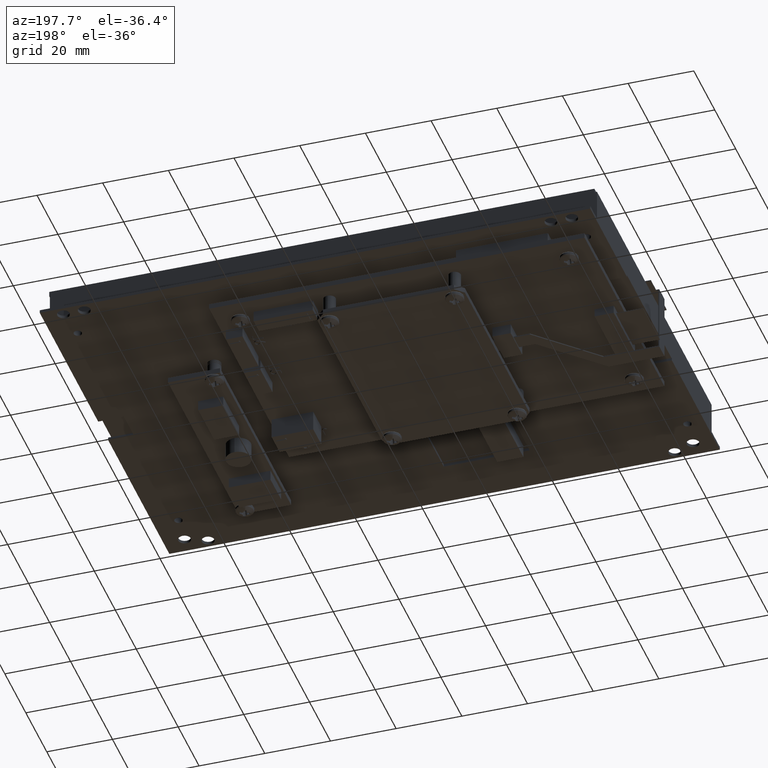
[diagram: clean part render]
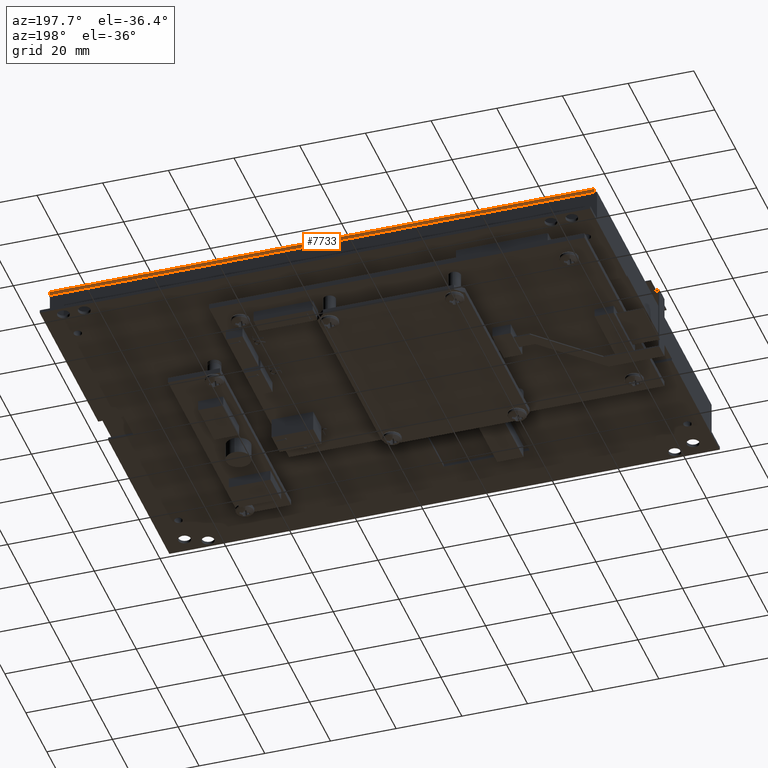
[diagram: same view with one face highlighted and labeled with its STEP entity id]
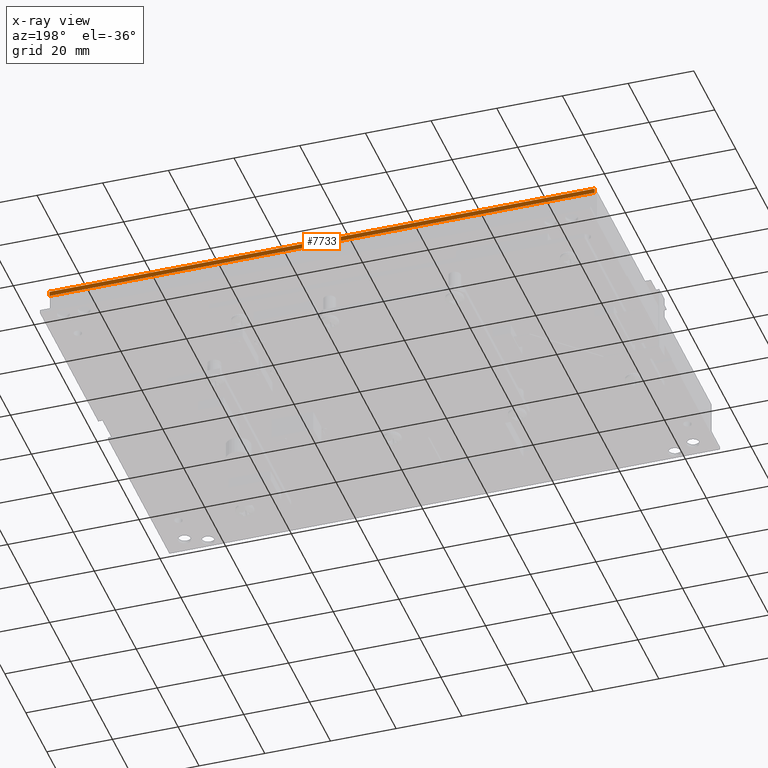
[diagram: x-ray of the same camera — body ghosted, the highlighted face saturated]
A machine part, auxiliary view. The second image highlights one B-rep face of the part: STEP entity #7733.
The next image is the same camera in x-ray: the body ghosted, the highlighted face saturated — about 0% of this face is hidden behind the body in this view.
In plain terms, the highlighted planar face has unit normal (-0, -1, -0).
Its self-contained STEP definition (entity closure, byte-faithful):
#830 = EDGE_CURVE ( 'NONE', #8512, #8495, #2302, .T. ) ;
#838 = EDGE_CURVE ( 'NONE', #8486, #8523, #2334, .T. ) ;
#840 = EDGE_CURVE ( 'NONE', #8523, #8495, #2340, .T. ) ;
#841 = EDGE_CURVE ( 'NONE', #8486, #8512, #2343, .T. ) ;
#2302 = LINE ( 'NONE', #2311, #8177 ) ;
#2311 = CARTESIAN_POINT ( 'NONE',  ( -3.267716535433081900, 0.01181102362204587500, -2.094488188976375600 ) ) ;
#2312 = DIRECTION ( 'NONE',  ( -6.937569603944446100E-017, -1.000000000000000000, -7.902038014058880900E-016 ) ) ;
#2334 = LINE ( 'NONE', #2336, #5641 ) ;
#2336 = CARTESIAN_POINT ( 'NONE',  ( 3.267716535433081900, 0.01181102362204587500, -2.094488188976377800 ) ) ;
#2337 = DIRECTION ( 'NONE',  ( -6.937569603944446100E-017, -1.000000000000000000, -7.902038014058880900E-016 ) ) ;
#2340 = LINE ( 'NONE', #2341, #5642 ) ;
#2341 = CARTESIAN_POINT ( 'NONE',  ( -3.267716535433081900, -1.365923996832131600E-015, -2.094488188976378200 ) ) ;
#2342 = DIRECTION ( 'NONE',  ( -1.000000000000000000, -6.937569603944424000E-017, 3.327325028620568100E-016 ) ) ;
#2343 = LINE ( 'NONE', #2344, #5644 ) ;
#2344 = CARTESIAN_POINT ( 'NONE',  ( 3.267716535433081900, 0.05905511811023490800, -2.094488188976377800 ) ) ;
#2345 = DIRECTION ( 'NONE',  ( -1.000000000000000000, -6.937569603944424000E-017, 3.327325028620568100E-016 ) ) ;
#4227 = CARTESIAN_POINT ( 'NONE',  ( -3.267716535433081900, 0.01181102362204587500, -2.094488188976375600 ) ) ;
#4235 = FACE_OUTER_BOUND ( 'NONE', #13860, .T. ) ;
#4236 = PLANE ( 'NONE',  #19146 ) ;
#4238 = DIRECTION ( 'NONE',  ( 3.327325028620567100E-016, 7.902038014058882900E-016, 1.000000000000000000 ) ) ;
#4239 = DIRECTION ( 'NONE',  ( 1.000000000000000000, 6.937569603944424000E-017, -3.327325028620567600E-016 ) ) ;
#5641 = VECTOR ( 'NONE', #2337, 39.37007874015748100 ) ;
#5642 = VECTOR ( 'NONE', #2342, 39.37007874015748100 ) ;
#5644 = VECTOR ( 'NONE', #2345, 39.37007874015748100 ) ;
#7733 = ADVANCED_FACE ( 'NONE', ( #4235 ), #4236, .F. ) ;
#8177 = VECTOR ( 'NONE', #2312, 39.37007874015748100 ) ;
#8486 = VERTEX_POINT ( 'NONE', #9377 ) ;
#8495 = VERTEX_POINT ( 'NONE', #9383 ) ;
#8512 = VERTEX_POINT ( 'NONE', #9394 ) ;
#8523 = VERTEX_POINT ( 'NONE', #9401 ) ;
#9377 = CARTESIAN_POINT ( 'NONE',  ( 3.267716535433081900, 0.05905511811023490800, -2.094488188976377800 ) ) ;
#9383 = CARTESIAN_POINT ( 'NONE',  ( -3.267716535433081900, -1.365923996832131600E-015, -2.094488188976378200 ) ) ;
#9394 = CARTESIAN_POINT ( 'NONE',  ( -3.267716535433081900, 0.05905511811023490800, -2.094488188976375600 ) ) ;
#9401 = CARTESIAN_POINT ( 'NONE',  ( 3.267716535433081900, -1.365923996832131600E-015, -2.094488188976377800 ) ) ;
#13860 = EDGE_LOOP ( 'NONE', ( #18863, #18865, #18867, #18870 ) ) ;
#18863 = ORIENTED_EDGE ( 'NONE', *, *, #840, .T. ) ;
#18865 = ORIENTED_EDGE ( 'NONE', *, *, #830, .F. ) ;
#18867 = ORIENTED_EDGE ( 'NONE', *, *, #841, .F. ) ;
#18870 = ORIENTED_EDGE ( 'NONE', *, *, #838, .T. ) ;
#19146 = AXIS2_PLACEMENT_3D ( 'NONE', #4227, #4238, #4239 ) ;